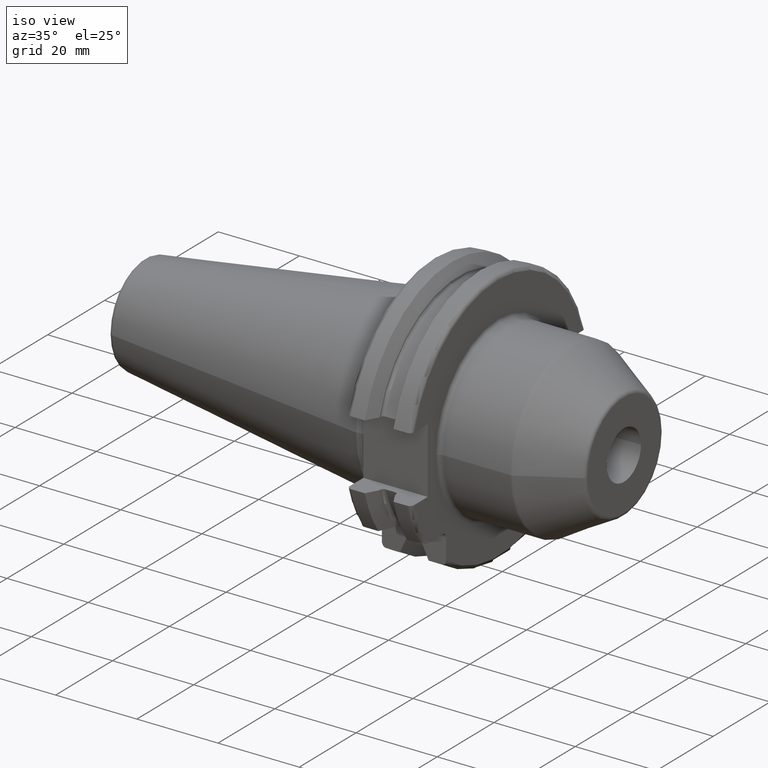
[diagram: clean part render]
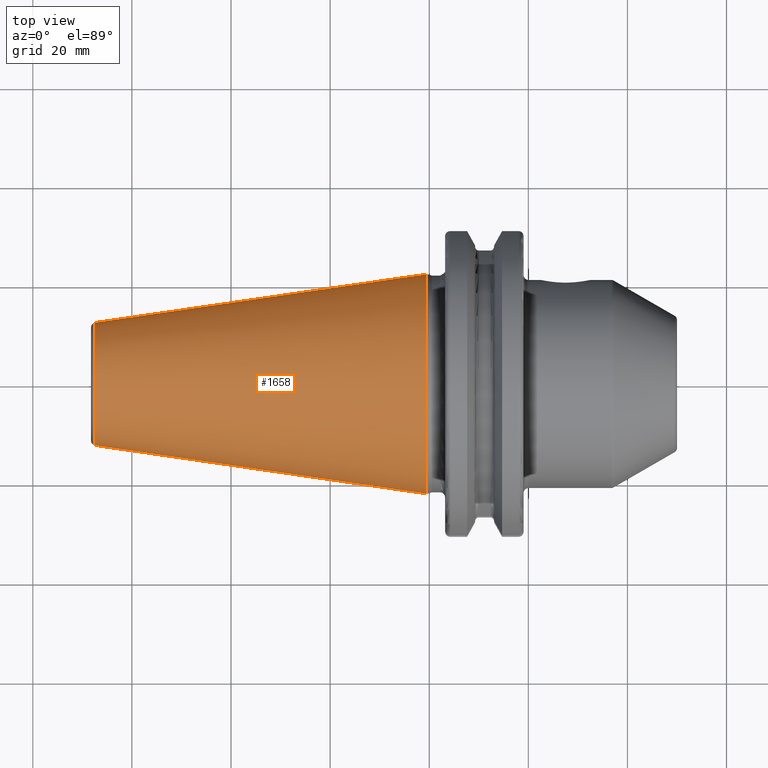
[diagram: tour spotlight — one face highlighted and labeled with its STEP entity id]
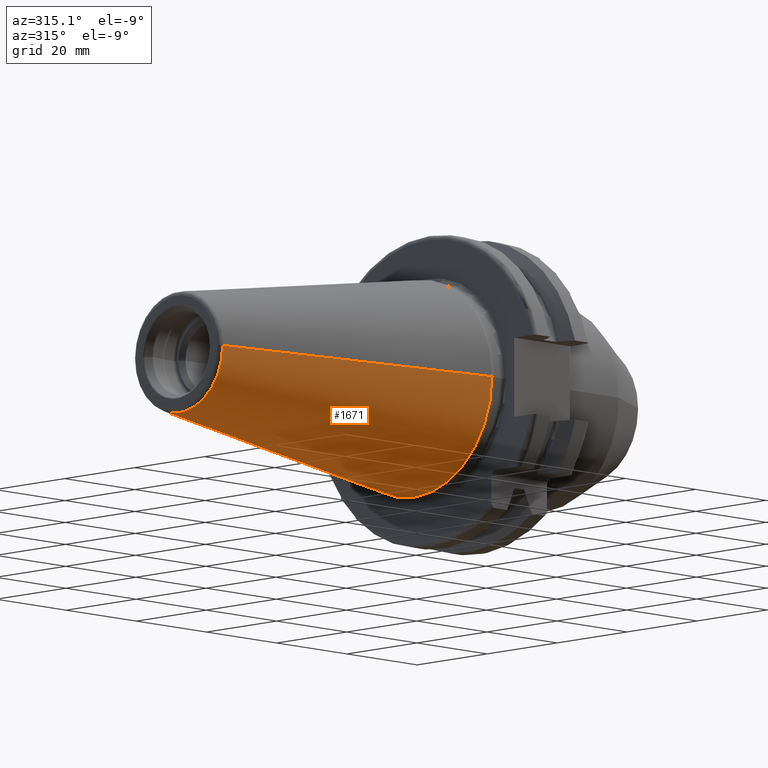
[diagram: tour spotlight — one face highlighted and labeled with its STEP entity id]
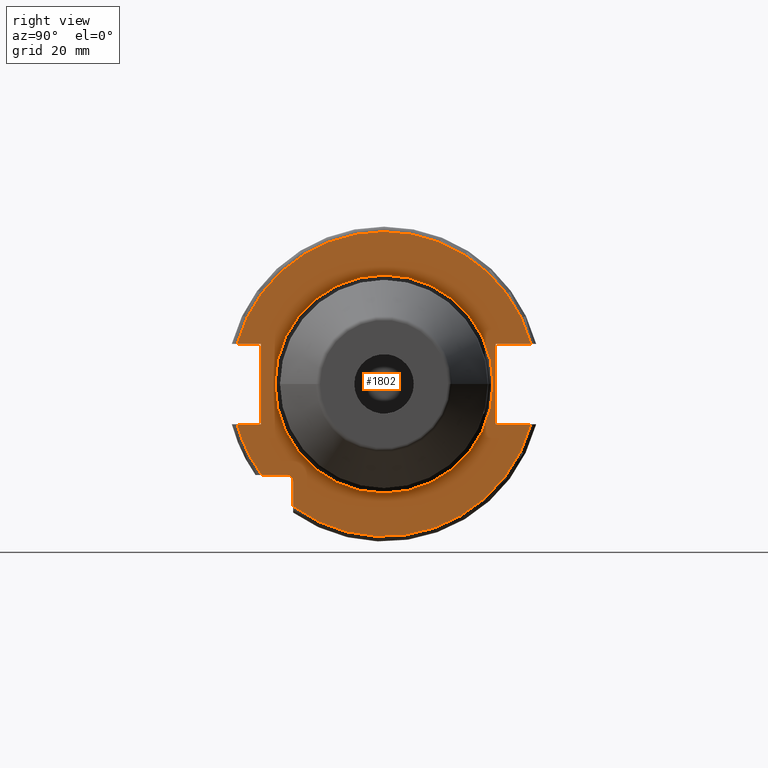
[diagram: tour spotlight — one face highlighted and labeled with its STEP entity id]
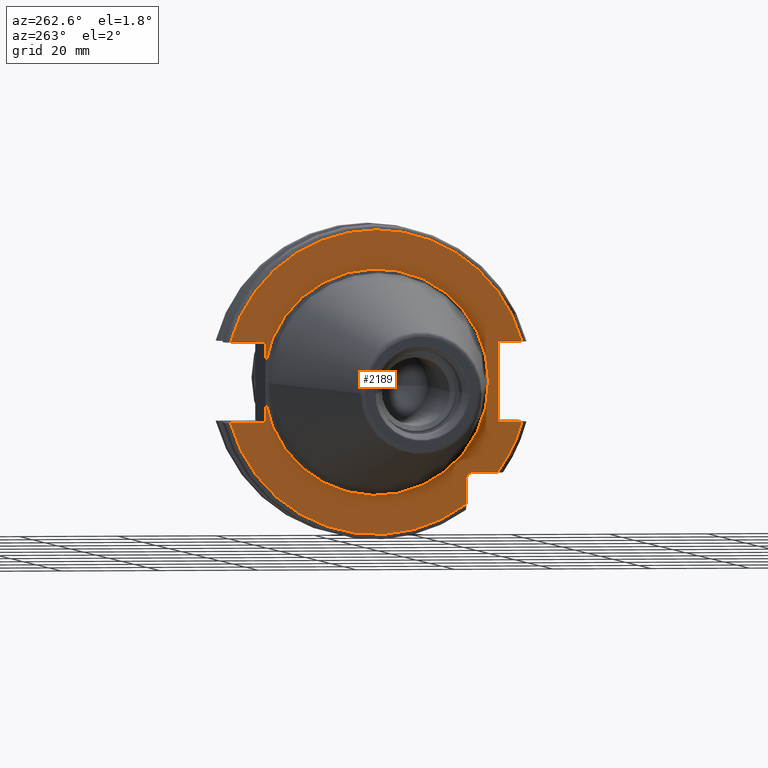
[diagram: tour spotlight — one face highlighted and labeled with its STEP entity id]
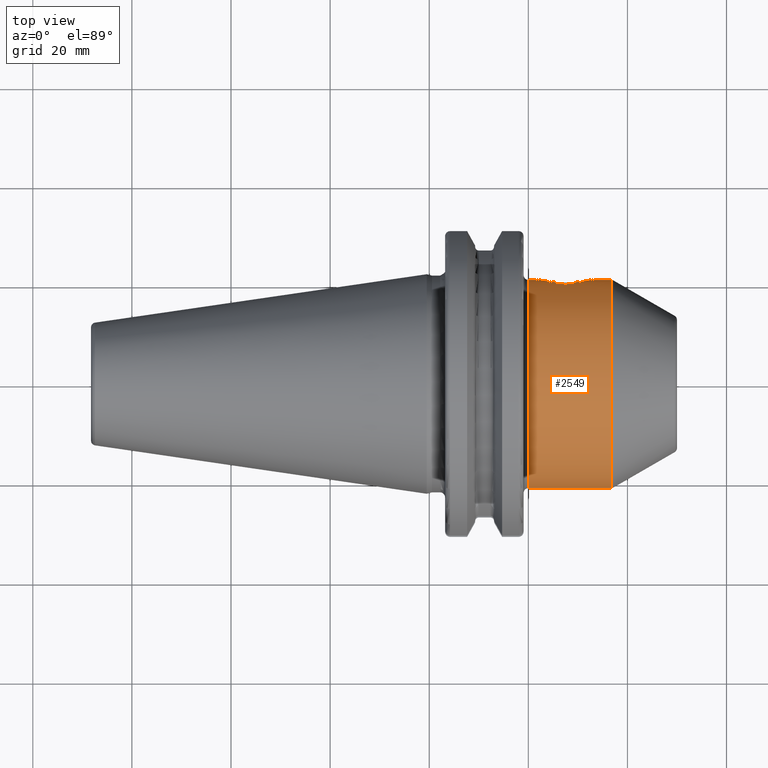
[diagram: tour spotlight — one face highlighted and labeled with its STEP entity id]
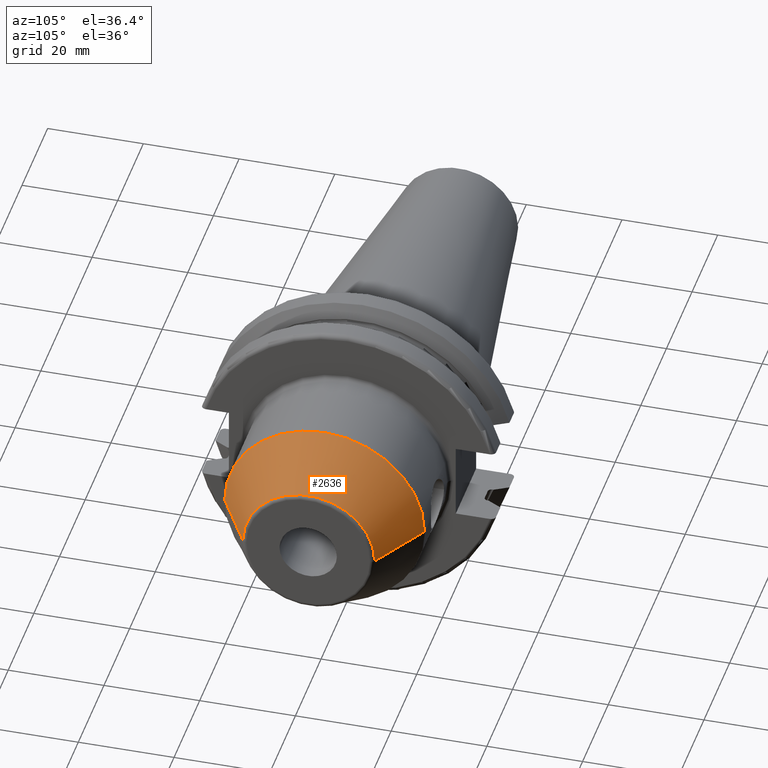
[diagram: tour spotlight — one face highlighted and labeled with its STEP entity id]
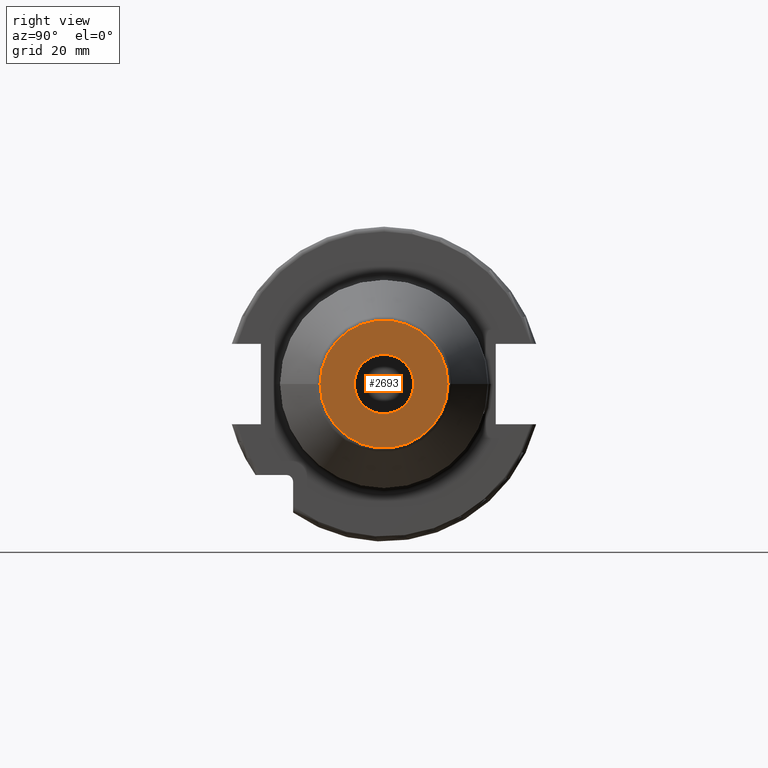
[diagram: tour spotlight — one face highlighted and labeled with its STEP entity id]
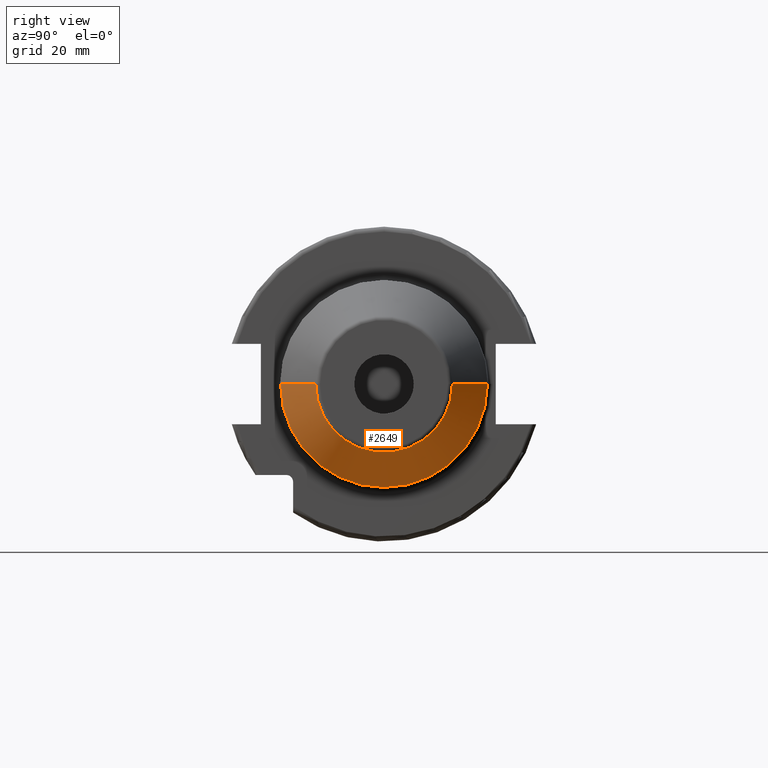
[diagram: tour spotlight — one face highlighted and labeled with its STEP entity id]
A machine part: a face-by-face anatomy tour. The part has 99 B-rep faces; the first image is the clean iso view, then the 8 largest visible faces are spotlighted one at a time (largest first), each with its STEP entity span.

Face 1 — top view, entity #1658. In plain terms, the highlighted conical surface has half-angle 8.298 deg.
Definition (entity closure, byte-faithful):
#37=CARTESIAN_POINT('',(-6.743710273571E1,0.E0,0.E0));
#38=DIRECTION('',(1.E0,0.E0,0.E0));
#39=DIRECTION('',(0.E0,1.E0,0.E0));
#40=AXIS2_PLACEMENT_3D('',#37,#38,#39);
#42=CARTESIAN_POINT('',(-4.896823332305E-1,0.E0,0.E0));
#43=DIRECTION('',(1.E0,0.E0,0.E0));
#44=DIRECTION('',(0.E0,1.E0,0.E0));
#45=AXIS2_PLACEMENT_3D('',#42,#43,#44);
#47=DIRECTION('',(-9.895312636440E-1,-1.443186691705E-1,0.E0));
#48=VECTOR('',#47,6.765568998391E1);
#49=CARTESIAN_POINT('',(-4.896823332305E-1,2.215358204157E1,0.E0));
#50=LINE('',#49,#48);
#51=DIRECTION('',(-9.895312636440E-1,1.443186691705E-1,0.E0));
#52=VECTOR('',#51,6.765568998391E1);
#53=CARTESIAN_POINT('',(-4.896823332305E-1,-2.215358204157E1,0.E0));
#54=LINE('',#53,#52);
#1334=CARTESIAN_POINT('',(-6.743710273571E1,1.238960290128E1,0.E0));
#1336=VERTEX_POINT('',#1334);
#1338=CARTESIAN_POINT('',(-6.743710273571E1,-1.238960290128E1,0.E0));
#1340=VERTEX_POINT('',#1338);
#1402=CARTESIAN_POINT('',(-4.896823332305E-1,2.215358204157E1,0.E0));
#1403=VERTEX_POINT('',#1402);
#1404=CARTESIAN_POINT('',(-4.896823332305E-1,-2.215358204157E1,0.E0));
#1405=VERTEX_POINT('',#1404);
#1644=CARTESIAN_POINT('',(-3.396339253447E1,0.E0,0.E0));
#1645=DIRECTION('',(1.E0,0.E0,0.E0));
#1646=DIRECTION('',(0.E0,-1.E0,0.E0));
#1647=AXIS2_PLACEMENT_3D('',#1644,#1645,#1646);
#1648=CONICAL_SURFACE('',#1647,1.727159247143E1,8.297826828206E0);
#1650=ORIENTED_EDGE('',*,*,#1649,.F.);
#1652=ORIENTED_EDGE('',*,*,#1651,.T.);
#1654=ORIENTED_EDGE('',*,*,#1653,.T.);
#1655=ORIENTED_EDGE('',*,*,#1637,.F.);
#1656=EDGE_LOOP('',(#1650,#1652,#1654,#1655));
#1657=FACE_OUTER_BOUND('',#1656,.F.);
#1658=ADVANCED_FACE('',(#1657),#1648,.T.);
#41=CIRCLE('',#40,1.238960290128E1);
#46=CIRCLE('',#45,2.215358204157E1);
#1637=EDGE_CURVE('',#1336,#1340,#41,.T.);
#1649=EDGE_CURVE('',#1403,#1336,#50,.T.);
#1651=EDGE_CURVE('',#1403,#1405,#46,.T.);
#1653=EDGE_CURVE('',#1405,#1340,#54,.T.);

Face 2 — auxiliary view, entity #1671. In plain terms, the highlighted conical surface has half-angle 8.298 deg.
Definition (entity closure, byte-faithful):
#32=CARTESIAN_POINT('',(-6.743710273571E1,0.E0,0.E0));
#33=DIRECTION('',(-1.E0,0.E0,0.E0));
#34=DIRECTION('',(0.E0,1.E0,0.E0));
#35=AXIS2_PLACEMENT_3D('',#32,#33,#34);
#47=DIRECTION('',(-9.895312636440E-1,-1.443186691705E-1,0.E0));
#48=VECTOR('',#47,6.765568998391E1);
#49=CARTESIAN_POINT('',(-4.896823332305E-1,2.215358204157E1,0.E0));
#50=LINE('',#49,#48);
#51=DIRECTION('',(-9.895312636440E-1,1.443186691705E-1,0.E0));
#52=VECTOR('',#51,6.765568998391E1);
#53=CARTESIAN_POINT('',(-4.896823332305E-1,-2.215358204157E1,0.E0));
#54=LINE('',#53,#52);
#55=CARTESIAN_POINT('',(-4.896823332305E-1,0.E0,0.E0));
#56=DIRECTION('',(-1.E0,0.E0,0.E0));
#57=DIRECTION('',(0.E0,1.E0,0.E0));
#58=AXIS2_PLACEMENT_3D('',#55,#56,#57);
#1334=CARTESIAN_POINT('',(-6.743710273571E1,1.238960290128E1,0.E0));
#1336=VERTEX_POINT('',#1334);
#1338=CARTESIAN_POINT('',(-6.743710273571E1,-1.238960290128E1,0.E0));
#1340=VERTEX_POINT('',#1338);
#1402=CARTESIAN_POINT('',(-4.896823332305E-1,2.215358204157E1,0.E0));
#1403=VERTEX_POINT('',#1402);
#1404=CARTESIAN_POINT('',(-4.896823332305E-1,-2.215358204157E1,0.E0));
#1405=VERTEX_POINT('',#1404);
#1659=CARTESIAN_POINT('',(-3.396339253447E1,0.E0,0.E0));
#1660=DIRECTION('',(1.E0,0.E0,0.E0));
#1661=DIRECTION('',(0.E0,-1.E0,0.E0));
#1662=AXIS2_PLACEMENT_3D('',#1659,#1660,#1661);
#1663=CONICAL_SURFACE('',#1662,1.727159247143E1,8.297826828206E0);
#1664=ORIENTED_EDGE('',*,*,#1649,.T.);
#1665=ORIENTED_EDGE('',*,*,#1626,.T.);
#1666=ORIENTED_EDGE('',*,*,#1653,.F.);
#1668=ORIENTED_EDGE('',*,*,#1667,.F.);
#1669=EDGE_LOOP('',(#1664,#1665,#1666,#1668));
#1670=FACE_OUTER_BOUND('',#1669,.F.);
#1671=ADVANCED_FACE('',(#1670),#1663,.T.);
#36=CIRCLE('',#35,1.238960290128E1);
#59=CIRCLE('',#58,2.215358204157E1);
#1626=EDGE_CURVE('',#1336,#1340,#36,.T.);
#1649=EDGE_CURVE('',#1403,#1336,#50,.T.);
#1653=EDGE_CURVE('',#1405,#1340,#54,.T.);
#1667=EDGE_CURVE('',#1403,#1405,#59,.T.);

Face 3 — right view, entity #1802. In plain terms, the highlighted planar face has unit normal (1, 0, 0).
Definition (entity closure, byte-faithful):
#126=DIRECTION('',(0.E0,0.E0,1.E0));
#127=VECTOR('',#126,4.990259339464E0);
#128=CARTESIAN_POINT('',(1.905E1,-1.835E1,-2.469025933946E1));
#129=LINE('',#128,#127);
#130=DIRECTION('',(0.E0,-1.E0,0.E0));
#131=VECTOR('',#130,4.990259339464E0);
#132=CARTESIAN_POINT('',(1.905E1,-1.97E1,-1.835E1));
#133=LINE('',#132,#131);
#134=DIRECTION('',(0.E0,1.E0,0.E0));
#135=VECTOR('',#134,4.826950757280E0);
#136=CARTESIAN_POINT('',(1.905E1,-2.967695075728E1,-8.1E0));
#137=LINE('',#136,#135);
#138=DIRECTION('',(0.E0,0.E0,1.E0));
#139=VECTOR('',#138,1.62E1);
#140=CARTESIAN_POINT('',(1.905E1,-2.485E1,-8.1E0));
#141=LINE('',#140,#139);
#142=DIRECTION('',(0.E0,1.E0,0.E0));
#143=VECTOR('',#142,4.826950757280E0);
#144=CARTESIAN_POINT('',(1.905E1,-2.967695075728E1,8.1E0));
#145=LINE('',#144,#143);
#146=DIRECTION('',(0.E0,-1.E0,0.E0));
#147=VECTOR('',#146,7.126950757280E0);
#148=CARTESIAN_POINT('',(1.905E1,2.967695075728E1,8.1E0));
#149=LINE('',#148,#147);
#150=DIRECTION('',(0.E0,0.E0,-1.E0));
#151=VECTOR('',#150,1.62E1);
#152=CARTESIAN_POINT('',(1.905E1,2.255E1,8.1E0));
#153=LINE('',#152,#151);
#154=DIRECTION('',(0.E0,-1.E0,0.E0));
#155=VECTOR('',#154,7.126950757280E0);
#156=CARTESIAN_POINT('',(1.905E1,2.967695075728E1,-8.1E0));
#157=LINE('',#156,#155);
#158=CARTESIAN_POINT('',(1.905E1,0.E0,0.E0));
#159=DIRECTION('',(1.E0,0.E0,0.E0));
#160=DIRECTION('',(0.E0,-1.E0,0.E0));
#161=AXIS2_PLACEMENT_3D('',#158,#159,#160);
#163=CARTESIAN_POINT('',(1.905E1,0.E0,0.E0));
#164=DIRECTION('',(1.E0,0.E0,0.E0));
#165=DIRECTION('',(0.E0,1.E0,0.E0));
#166=AXIS2_PLACEMENT_3D('',#163,#164,#165);
#194=CARTESIAN_POINT('',(1.905E1,0.E0,0.E0));
#195=DIRECTION('',(-1.E0,0.E0,0.E0));
#196=DIRECTION('',(0.E0,9.647119303464E-1,-2.633075985372E-1));
#197=AXIS2_PLACEMENT_3D('',#194,#195,#196);
#210=CARTESIAN_POINT('',(1.905E1,0.E0,0.E0));
#211=DIRECTION('',(-1.E0,0.E0,0.E0));
#212=DIRECTION('',(0.E0,-8.026089992512E-1,-5.965054855750E-1));
#213=AXIS2_PLACEMENT_3D('',#210,#211,#212);
#525=CARTESIAN_POINT('',(1.905E1,-1.97E1,-1.97E1));
#526=DIRECTION('',(-1.E0,0.E0,0.E0));
#527=DIRECTION('',(0.E0,0.E0,1.E0));
#528=AXIS2_PLACEMENT_3D('',#525,#526,#527);
#882=CARTESIAN_POINT('',(1.905E1,0.E0,0.E0));
#883=DIRECTION('',(1.E0,0.E0,0.E0));
#884=DIRECTION('',(0.E0,9.647119303464E-1,2.633075985372E-1));
#885=AXIS2_PLACEMENT_3D('',#882,#883,#884);
#1472=CARTESIAN_POINT('',(1.905E1,2.967695075728E1,8.1E0));
#1473=CARTESIAN_POINT('',(1.905E1,2.255E1,8.1E0));
#1474=VERTEX_POINT('',#1472);
#1475=VERTEX_POINT('',#1473);
#1476=CARTESIAN_POINT('',(1.905E1,2.255E1,-8.1E0));
#1477=VERTEX_POINT('',#1476);
#1478=CARTESIAN_POINT('',(1.905E1,2.967695075728E1,-8.1E0));
#1479=VERTEX_POINT('',#1478);
#1480=CARTESIAN_POINT('',(1.905E1,-2.967695075728E1,-8.1E0));
#1481=CARTESIAN_POINT('',(1.905E1,-2.485E1,-8.1E0));
#1482=VERTEX_POINT('',#1480);
#1483=VERTEX_POINT('',#1481);
#1484=CARTESIAN_POINT('',(1.905E1,-2.485E1,8.1E0));
#1485=VERTEX_POINT('',#1484);
#1486=CARTESIAN_POINT('',(1.905E1,-2.967695075728E1,8.1E0));
#1487=VERTEX_POINT('',#1486);
#1533=CARTESIAN_POINT('',(1.905E1,-1.835E1,-2.469025933946E1));
#1534=VERTEX_POINT('',#1533);
#1541=CARTESIAN_POINT('',(1.905E1,-1.97E1,-1.835E1));
#1542=CARTESIAN_POINT('',(1.905E1,-2.469025933946E1,-1.835E1));
#1543=VERTEX_POINT('',#1541);
#1544=VERTEX_POINT('',#1542);
#1545=CARTESIAN_POINT('',(1.905E1,-1.835E1,-1.97E1));
#1546=VERTEX_POINT('',#1545);
#1561=CARTESIAN_POINT('',(1.905E1,-2.2E1,0.E0));
#1562=CARTESIAN_POINT('',(1.905E1,2.2E1,0.E0));
#1563=VERTEX_POINT('',#1561);
#1564=VERTEX_POINT('',#1562);
#1766=CARTESIAN_POINT('',(1.905E1,0.E0,0.E0));
#1767=DIRECTION('',(1.E0,0.E0,0.E0));
#1768=DIRECTION('',(0.E0,-1.E0,0.E0));
#1769=AXIS2_PLACEMENT_3D('',#1766,#1767,#1768);
#1770=PLANE('',#1769);
#1772=ORIENTED_EDGE('',*,*,#1771,.T.);
#1774=ORIENTED_EDGE('',*,*,#1773,.F.);
#1776=ORIENTED_EDGE('',*,*,#1775,.T.);
#1778=ORIENTED_EDGE('',*,*,#1777,.T.);
#1780=ORIENTED_EDGE('',*,*,#1779,.T.);
#1782=ORIENTED_EDGE('',*,*,#1781,.T.);
#1784=ORIENTED_EDGE('',*,*,#1783,.F.);
#1786=ORIENTED_EDGE('',*,*,#1785,.F.);
#1788=ORIENTED_EDGE('',*,*,#1787,.T.);
#1789=ORIENTED_EDGE('',*,*,#1750,.T.);
#1791=ORIENTED_EDGE('',*,*,#1790,.F.);
#1793=ORIENTED_EDGE('',*,*,#1792,.T.);
#1794=EDGE_LOOP('',(#1772,#1774,#1776,#1778,#1780,#1782,#1784,#1786,#1788,#1789,
#1791,#1793));
#1795=FACE_OUTER_BOUND('',#1794,.F.);
#1797=ORIENTED_EDGE('',*,*,#1796,.T.);
#1799=ORIENTED_EDGE('',*,*,#1798,.T.);
#1800=EDGE_LOOP('',(#1797,#1799));
#1801=FACE_BOUND('',#1800,.F.);
#1802=ADVANCED_FACE('',(#1795,#1801),#1770,.T.);
#162=CIRCLE('',#161,2.2E1);
#167=CIRCLE('',#166,2.2E1);
#198=CIRCLE('',#197,3.07625E1);
#214=CIRCLE('',#213,3.07625E1);
#529=CIRCLE('',#528,1.35E0);
#886=CIRCLE('',#885,3.07625E1);
#1750=EDGE_CURVE('',#1475,#1477,#153,.T.);
#1771=EDGE_CURVE('',#1534,#1546,#129,.T.);
#1773=EDGE_CURVE('',#1543,#1546,#529,.T.);
#1775=EDGE_CURVE('',#1543,#1544,#133,.T.);
#1777=EDGE_CURVE('',#1544,#1482,#214,.T.);
#1779=EDGE_CURVE('',#1482,#1483,#137,.T.);
#1781=EDGE_CURVE('',#1483,#1485,#141,.T.);
#1783=EDGE_CURVE('',#1487,#1485,#145,.T.);
#1785=EDGE_CURVE('',#1474,#1487,#886,.T.);
#1787=EDGE_CURVE('',#1474,#1475,#149,.T.);
#1790=EDGE_CURVE('',#1479,#1477,#157,.T.);
#1792=EDGE_CURVE('',#1479,#1534,#198,.T.);
#1796=EDGE_CURVE('',#1563,#1564,#162,.T.);
#1798=EDGE_CURVE('',#1564,#1563,#167,.T.);

Face 4 — auxiliary view, entity #2189. In plain terms, the highlighted planar face has unit normal (1, 0, 0).
Definition (entity closure, byte-faithful):
#117=CARTESIAN_POINT('',(3.2E0,0.E0,0.E0));
#118=DIRECTION('',(-1.E0,0.E0,0.E0));
#119=DIRECTION('',(0.E0,9.857923497268E-1,-1.679685780739E-1));
#120=AXIS2_PLACEMENT_3D('',#117,#118,#119);
#470=DIRECTION('',(0.E0,-1.E0,0.E0));
#471=VECTOR('',#470,4.990259339464E0);
#472=CARTESIAN_POINT('',(3.2E0,-1.97E1,-1.835E1));
#473=LINE('',#472,#471);
#474=DIRECTION('',(0.E0,0.E0,1.E0));
#475=VECTOR('',#474,4.990259339464E0);
#476=CARTESIAN_POINT('',(3.2E0,-1.835E1,-2.469025933946E1));
#477=LINE('',#476,#475);
#478=CARTESIAN_POINT('',(3.2E0,0.E0,0.E0));
#479=DIRECTION('',(-1.E0,0.E0,0.E0));
#480=DIRECTION('',(0.E0,9.647119303464E-1,-2.633075985372E-1));
#481=AXIS2_PLACEMENT_3D('',#478,#479,#480);
#483=DIRECTION('',(0.E0,-1.E0,0.E0));
#484=VECTOR('',#483,7.126950757280E0);
#485=CARTESIAN_POINT('',(3.2E0,2.967695075728E1,-8.1E0));
#486=LINE('',#485,#484);
#487=DIRECTION('',(0.E0,0.E0,-1.E0));
#488=VECTOR('',#487,4.257718776560E0);
#489=CARTESIAN_POINT('',(3.2E0,2.255E1,-3.842281223440E0));
#490=LINE('',#489,#488);
#491=DIRECTION('',(0.E0,0.E0,-1.E0));
#492=VECTOR('',#491,4.257718776560E0);
#493=CARTESIAN_POINT('',(3.2E0,2.255E1,8.1E0));
#494=LINE('',#493,#492);
#495=DIRECTION('',(0.E0,-1.E0,0.E0));
#496=VECTOR('',#495,7.126950757280E0);
#497=CARTESIAN_POINT('',(3.2E0,2.967695075728E1,8.1E0));
#498=LINE('',#497,#496);
#499=CARTESIAN_POINT('',(3.2E0,0.E0,0.E0));
#500=DIRECTION('',(1.E0,0.E0,0.E0));
#501=DIRECTION('',(0.E0,9.647119303464E-1,2.633075985372E-1));
#502=AXIS2_PLACEMENT_3D('',#499,#500,#501);
#504=DIRECTION('',(0.E0,1.E0,0.E0));
#505=VECTOR('',#504,4.826950757280E0);
#506=CARTESIAN_POINT('',(3.2E0,-2.967695075728E1,8.1E0));
#507=LINE('',#506,#505);
#508=DIRECTION('',(0.E0,0.E0,1.E0));
#509=VECTOR('',#508,1.62E1);
#510=CARTESIAN_POINT('',(3.2E0,-2.485E1,-8.1E0));
#511=LINE('',#510,#509);
#512=DIRECTION('',(0.E0,1.E0,0.E0));
#513=VECTOR('',#512,4.826950757280E0);
#514=CARTESIAN_POINT('',(3.2E0,-2.967695075728E1,-8.1E0));
#515=LINE('',#514,#513);
#516=CARTESIAN_POINT('',(3.2E0,0.E0,0.E0));
#517=DIRECTION('',(-1.E0,0.E0,0.E0));
#518=DIRECTION('',(0.E0,-8.026089992512E-1,-5.965054855750E-1));
#519=AXIS2_PLACEMENT_3D('',#516,#517,#518);
#530=CARTESIAN_POINT('',(3.2E0,-1.97E1,-1.97E1));
#531=DIRECTION('',(1.E0,0.E0,0.E0));
#532=DIRECTION('',(0.E0,1.E0,0.E0));
#533=AXIS2_PLACEMENT_3D('',#530,#531,#532);
#866=CARTESIAN_POINT('',(3.2E0,0.E0,0.E0));
#867=DIRECTION('',(1.E0,0.E0,0.E0));
#868=DIRECTION('',(0.E0,9.857923497268E-1,1.679685780739E-1));
#869=AXIS2_PLACEMENT_3D('',#866,#867,#868);
#1346=CARTESIAN_POINT('',(3.2E0,-2.2875E1,0.E0));
#1348=VERTEX_POINT('',#1346);
#1496=CARTESIAN_POINT('',(3.2E0,2.967695075728E1,8.1E0));
#1497=CARTESIAN_POINT('',(3.2E0,2.255E1,8.1E0));
#1498=VERTEX_POINT('',#1496);
#1499=VERTEX_POINT('',#1497);
#1500=CARTESIAN_POINT('',(3.2E0,2.255E1,3.842281223440E0));
#1501=VERTEX_POINT('',#1500);
#1502=CARTESIAN_POINT('',(3.2E0,2.255E1,-3.842281223440E0));
#1503=CARTESIAN_POINT('',(3.2E0,2.255E1,-8.1E0));
#1504=VERTEX_POINT('',#1502);
#1505=VERTEX_POINT('',#1503);
#1506=CARTESIAN_POINT('',(3.2E0,2.967695075728E1,-8.1E0));
#1507=VERTEX_POINT('',#1506);
#1508=CARTESIAN_POINT('',(3.2E0,-2.967695075728E1,-8.1E0));
#1509=CARTESIAN_POINT('',(3.2E0,-2.485E1,-8.1E0));
#1510=VERTEX_POINT('',#1508);
#1511=VERTEX_POINT('',#1509);
#1512=CARTESIAN_POINT('',(3.2E0,-2.485E1,8.1E0));
#1513=VERTEX_POINT('',#1512);
#1514=CARTESIAN_POINT('',(3.2E0,-2.967695075728E1,8.1E0));
#1515=VERTEX_POINT('',#1514);
#1539=CARTESIAN_POINT('',(3.2E0,-1.835E1,-2.469025933946E1));
#1540=VERTEX_POINT('',#1539);
#1547=CARTESIAN_POINT('',(3.2E0,-1.97E1,-1.835E1));
#1548=CARTESIAN_POINT('',(3.2E0,-2.469025933946E1,-1.835E1));
#1549=VERTEX_POINT('',#1547);
#1550=VERTEX_POINT('',#1548);
#1551=CARTESIAN_POINT('',(3.2E0,-1.835E1,-1.97E1));
#1552=VERTEX_POINT('',#1551);
#2160=CARTESIAN_POINT('',(3.2E0,0.E0,0.E0));
#2161=DIRECTION('',(1.E0,0.E0,0.E0));
#2162=DIRECTION('',(0.E0,-1.E0,0.E0));
#2163=AXIS2_PLACEMENT_3D('',#2160,#2161,#2162);
#2164=PLANE('',#2163);
#2166=ORIENTED_EDGE('',*,*,#2165,.F.);
#2168=ORIENTED_EDGE('',*,*,#2167,.F.);
#2169=ORIENTED_EDGE('',*,*,#1831,.F.);
#2171=ORIENTED_EDGE('',*,*,#2170,.F.);
#2172=ORIENTED_EDGE('',*,*,#1889,.T.);
#2173=ORIENTED_EDGE('',*,*,#1759,.F.);
#2174=ORIENTED_EDGE('',*,*,#1740,.T.);
#2176=ORIENTED_EDGE('',*,*,#2175,.F.);
#2177=ORIENTED_EDGE('',*,*,#1754,.F.);
#2178=ORIENTED_EDGE('',*,*,#1958,.F.);
#2179=ORIENTED_EDGE('',*,*,#2155,.T.);
#2180=ORIENTED_EDGE('',*,*,#2016,.T.);
#2182=ORIENTED_EDGE('',*,*,#2181,.F.);
#2184=ORIENTED_EDGE('',*,*,#2183,.F.);
#2186=ORIENTED_EDGE('',*,*,#2185,.F.);
#2187=EDGE_LOOP('',(#2166,#2168,#2169,#2171,#2172,#2173,#2174,#2176,#2177,#2178,
#2179,#2180,#2182,#2184,#2186));
#2188=FACE_OUTER_BOUND('',#2187,.F.);
#2189=ADVANCED_FACE('',(#2188),#2164,.F.);
#121=CIRCLE('',#120,2.2875E1);
#482=CIRCLE('',#481,3.07625E1);
#503=CIRCLE('',#502,3.07625E1);
#520=CIRCLE('',#519,3.07625E1);
#534=CIRCLE('',#533,1.35E0);
#870=CIRCLE('',#869,2.2875E1);
#1740=EDGE_CURVE('',#1504,#1348,#121,.T.);
#1754=EDGE_CURVE('',#1499,#1501,#494,.T.);
#1759=EDGE_CURVE('',#1504,#1505,#490,.T.);
#1831=EDGE_CURVE('',#1540,#1552,#477,.T.);
#1889=EDGE_CURVE('',#1507,#1505,#486,.T.);
#1958=EDGE_CURVE('',#1498,#1499,#498,.T.);
#2016=EDGE_CURVE('',#1515,#1513,#507,.T.);
#2155=EDGE_CURVE('',#1498,#1515,#503,.T.);
#2165=EDGE_CURVE('',#1549,#1550,#473,.T.);
#2167=EDGE_CURVE('',#1552,#1549,#534,.T.);
#2170=EDGE_CURVE('',#1507,#1540,#482,.T.);
#2175=EDGE_CURVE('',#1501,#1348,#870,.T.);
#2181=EDGE_CURVE('',#1511,#1513,#511,.T.);
#2183=EDGE_CURVE('',#1510,#1511,#515,.T.);
#2185=EDGE_CURVE('',#1550,#1510,#520,.T.);

Face 5 — top view, entity #2549. In plain terms, the highlighted cylindrical surface (partial cylindrical patch) has radius 21 mm, axis along (1, 0, 0).
Definition (entity closure, byte-faithful):
#908=CARTESIAN_POINT('',(3.26E1,2.1E1,0.E0));
#909=CARTESIAN_POINT('',(3.26E1,2.1E1,3.161891526630E-1));
#910=CARTESIAN_POINT('',(3.254248900596E1,2.098591399606E1,9.370065775896E-1));
#911=CARTESIAN_POINT('',(3.228391612519E1,2.092465398686E1,1.849363236920E0));
#912=CARTESIAN_POINT('',(3.186742153787E1,2.083236077096E1,2.688704511159E0));
#913=CARTESIAN_POINT('',(3.130141455598E1,2.071991583657E1,3.442503667406E0));
#914=CARTESIAN_POINT('',(3.061534477317E1,2.060372149802E1,4.074069040042E0));
#915=CARTESIAN_POINT('',(2.981366233392E1,2.049660484811E1,4.577372892936E0));
#916=CARTESIAN_POINT('',(2.893851308238E1,2.041520399688E1,4.923675226914E0));
#917=CARTESIAN_POINT('',(2.799379995138E1,2.036988033640E1,5.105816993345E0));
#918=CARTESIAN_POINT('',(2.704690634566E1,2.036894573870E1,5.109496738638E0));
#919=CARTESIAN_POINT('',(2.610263058522E1,2.041232766337E1,4.935429109221E0));
#920=CARTESIAN_POINT('',(2.522337193309E1,2.049235163150E1,4.596213225941E0));
#921=CARTESIAN_POINT('',(2.441203114842E1,2.059947738759E1,4.095436089256E0));
#922=CARTESIAN_POINT('',(2.371677702077E1,2.071650105612E1,3.463162052591E0));
#923=CARTESIAN_POINT('',(2.314276934239E1,2.083017483835E1,2.705965849309E0));
#924=CARTESIAN_POINT('',(2.272081135796E1,2.092355125347E1,1.862604385451E0));
#925=CARTESIAN_POINT('',(2.245840123858E1,2.098569356872E1,9.441332576554E-1));
#926=CARTESIAN_POINT('',(2.24E1,2.1E1,3.186976489893E-1));
#927=CARTESIAN_POINT('',(2.24E1,2.1E1,0.E0));
#929=CARTESIAN_POINT('',(3.673205080757E1,0.E0,0.E0));
#930=DIRECTION('',(-1.E0,0.E0,0.E0));
#931=DIRECTION('',(0.E0,-1.E0,0.E0));
#932=AXIS2_PLACEMENT_3D('',#929,#930,#931);
#934=CARTESIAN_POINT('',(2.005E1,0.E0,0.E0));
#935=DIRECTION('',(1.E0,0.E0,0.E0));
#936=DIRECTION('',(0.E0,1.E0,0.E0));
#937=AXIS2_PLACEMENT_3D('',#934,#935,#936);
#968=DIRECTION('',(-1.E0,0.E0,1.085248912013E-12));
#969=VECTOR('',#968,2.35E0);
#970=CARTESIAN_POINT('',(2.24E1,2.1E1,0.E0));
#971=LINE('',#970,#969);
#977=DIRECTION('',(-1.E0,0.E0,-3.385644432892E-13));
#978=VECTOR('',#977,1.668205080757E1);
#979=CARTESIAN_POINT('',(3.673205080757E1,-2.1E1,3.093381769872E-12));
#980=LINE('',#979,#978);
#986=DIRECTION('',(-1.E0,0.E0,7.490991313013E-13));
#987=VECTOR('',#986,4.132050807569E0);
#988=CARTESIAN_POINT('',(3.673205080757E1,2.1E1,-3.094029791304E-12));
#989=LINE('',#988,#987);
#1565=CARTESIAN_POINT('',(2.005E1,-2.1E1,0.E0));
#1566=CARTESIAN_POINT('',(2.005E1,2.1E1,0.E0));
#1567=VERTEX_POINT('',#1565);
#1568=VERTEX_POINT('',#1566);
#1569=CARTESIAN_POINT('',(3.673205080757E1,2.1E1,0.E0));
#1570=CARTESIAN_POINT('',(3.673205080757E1,-2.1E1,0.E0));
#1571=VERTEX_POINT('',#1569);
#1572=VERTEX_POINT('',#1570);
#1594=VERTEX_POINT('',#908);
#1595=VERTEX_POINT('',#927);
#2531=CARTESIAN_POINT('',(1.75025E1,0.E0,0.E0));
#2532=DIRECTION('',(1.E0,0.E0,0.E0));
#2533=DIRECTION('',(0.E0,-1.E0,0.E0));
#2534=AXIS2_PLACEMENT_3D('',#2531,#2532,#2533);
#2535=CYLINDRICAL_SURFACE('',#2534,2.1E1);
#2537=ORIENTED_EDGE('',*,*,#2536,.F.);
#2539=ORIENTED_EDGE('',*,*,#2538,.F.);
#2541=ORIENTED_EDGE('',*,*,#2540,.F.);
#2543=ORIENTED_EDGE('',*,*,#2542,.T.);
#2544=ORIENTED_EDGE('',*,*,#2525,.F.);
#2546=ORIENTED_EDGE('',*,*,#2545,.F.);
#2547=EDGE_LOOP('',(#2537,#2539,#2541,#2543,#2544,#2546));
#2548=FACE_OUTER_BOUND('',#2547,.F.);
#2549=ADVANCED_FACE('',(#2548),#2535,.T.);
#928=B_SPLINE_CURVE_WITH_KNOTS('',3,(#908,#909,#910,#911,#912,#913,#914,#915,
#916,#917,#918,#919,#920,#921,#922,#923,#924,#925,#926,#927),.UNSPECIFIED.,.F.,
.F.,(4,1,1,1,1,1,1,1,1,1,1,1,1,1,1,1,1,4),(0.E0,5.882352941176E-2,
1.176470588235E-1,1.764705882353E-1,2.352941176471E-1,2.941176470588E-1,
3.529411764706E-1,4.117647058824E-1,4.705882352941E-1,5.294117647059E-1,
5.882352941176E-1,6.470588235294E-1,7.058823529412E-1,7.647058823529E-1,
8.235294117647E-1,8.823529411765E-1,9.411764705882E-1,1.E0),.UNSPECIFIED.);
#933=CIRCLE('',#932,2.1E1);
#938=CIRCLE('',#937,2.1E1);
#2525=EDGE_CURVE('',#1568,#1567,#938,.T.);
#2536=EDGE_CURVE('',#1594,#1595,#928,.T.);
#2538=EDGE_CURVE('',#1571,#1594,#989,.T.);
#2540=EDGE_CURVE('',#1572,#1571,#933,.T.);
#2542=EDGE_CURVE('',#1572,#1567,#980,.T.);
#2545=EDGE_CURVE('',#1595,#1568,#971,.T.);

Face 6 — auxiliary view, entity #2636. In plain terms, the highlighted conical surface has half-angle 30 deg.
Definition (entity closure, byte-faithful):
#1000=CARTESIAN_POINT('',(3.723205080757E1,0.E0,0.E0));
#1001=DIRECTION('',(-1.E0,0.E0,0.E0));
#1002=DIRECTION('',(0.E0,-1.E0,0.E0));
#1003=AXIS2_PLACEMENT_3D('',#1000,#1001,#1002);
#1005=CARTESIAN_POINT('',(4.95E1,0.E0,0.E0));
#1006=DIRECTION('',(-1.E0,0.E0,0.E0));
#1007=DIRECTION('',(0.E0,-1.E0,0.E0));
#1008=AXIS2_PLACEMENT_3D('',#1005,#1006,#1007);
#1015=DIRECTION('',(-8.660254037844E-1,-5.E-1,1.189947544583E-13));
#1016=VECTOR('',#1015,1.416580753731E1);
#1017=CARTESIAN_POINT('',(4.95E1,-1.378312163513E1,3.810775032617E-13));
#1018=LINE('',#1017,#1016);
#1024=DIRECTION('',(-8.660254037844E-1,5.E-1,-1.181494242382E-13));
#1025=VECTOR('',#1024,1.416580753731E1);
#1026=CARTESIAN_POINT('',(4.95E1,1.378312163513E1,-3.814994896565E-13));
#1027=LINE('',#1026,#1025);
#1573=CARTESIAN_POINT('',(3.723205080757E1,2.086602540378E1,0.E0));
#1574=CARTESIAN_POINT('',(3.723205080757E1,-2.086602540378E1,0.E0));
#1575=VERTEX_POINT('',#1573);
#1576=VERTEX_POINT('',#1574);
#1577=CARTESIAN_POINT('',(4.95E1,1.378312163513E1,0.E0));
#1578=CARTESIAN_POINT('',(4.95E1,-1.378312163513E1,0.E0));
#1579=VERTEX_POINT('',#1577);
#1580=VERTEX_POINT('',#1578);
#2622=CARTESIAN_POINT('',(4.336602540378E1,0.E0,0.E0));
#2623=DIRECTION('',(-1.E0,0.E0,0.E0));
#2624=DIRECTION('',(0.E0,1.E0,0.E0));
#2625=AXIS2_PLACEMENT_3D('',#2622,#2623,#2624);
#2626=CONICAL_SURFACE('',#2625,1.732457351946E1,3.E1);
#2627=ORIENTED_EDGE('',*,*,#2616,.T.);
#2629=ORIENTED_EDGE('',*,*,#2628,.F.);
#2631=ORIENTED_EDGE('',*,*,#2630,.F.);
#2633=ORIENTED_EDGE('',*,*,#2632,.T.);
#2634=EDGE_LOOP('',(#2627,#2629,#2631,#2633));
#2635=FACE_OUTER_BOUND('',#2634,.F.);
#2636=ADVANCED_FACE('',(#2635),#2626,.T.);
#1004=CIRCLE('',#1003,2.086602540378E1);
#1009=CIRCLE('',#1008,1.378312163513E1);
#2616=EDGE_CURVE('',#1576,#1575,#1004,.T.);
#2628=EDGE_CURVE('',#1579,#1575,#1027,.T.);
#2630=EDGE_CURVE('',#1580,#1579,#1009,.T.);
#2632=EDGE_CURVE('',#1580,#1576,#1018,.T.);

Face 7 — right view, entity #2693. In plain terms, the highlighted planar face has unit normal (1, 0, 0).
Definition (entity closure, byte-faithful):
#1038=CARTESIAN_POINT('',(5.E1,0.E0,0.E0));
#1039=DIRECTION('',(1.E0,0.E0,0.E0));
#1040=DIRECTION('',(0.E0,1.E0,0.E0));
#1041=AXIS2_PLACEMENT_3D('',#1038,#1039,#1040);
#1043=CARTESIAN_POINT('',(5.E1,0.E0,0.E0));
#1044=DIRECTION('',(1.E0,0.E0,0.E0));
#1045=DIRECTION('',(0.E0,-1.E0,0.E0));
#1046=AXIS2_PLACEMENT_3D('',#1043,#1044,#1045);
#1048=CARTESIAN_POINT('',(5.E1,0.E0,0.E0));
#1049=DIRECTION('',(-1.E0,0.E0,0.E0));
#1050=DIRECTION('',(0.E0,1.E0,0.E0));
#1051=AXIS2_PLACEMENT_3D('',#1048,#1049,#1050);
#1053=CARTESIAN_POINT('',(5.E1,0.E0,0.E0));
#1054=DIRECTION('',(-1.E0,0.E0,0.E0));
#1055=DIRECTION('',(0.E0,-1.E0,0.E0));
#1056=AXIS2_PLACEMENT_3D('',#1053,#1054,#1055);
#1557=CARTESIAN_POINT('',(5.E1,6.E0,0.E0));
#1558=CARTESIAN_POINT('',(5.E1,-6.E0,0.E0));
#1559=VERTEX_POINT('',#1557);
#1560=VERTEX_POINT('',#1558);
#1581=CARTESIAN_POINT('',(5.E1,1.291709623135E1,0.E0));
#1582=CARTESIAN_POINT('',(5.E1,-1.291709623135E1,-1.463646222867E-14));
#1583=VERTEX_POINT('',#1581);
#1584=VERTEX_POINT('',#1582);
#2678=CARTESIAN_POINT('',(5.E1,0.E0,0.E0));
#2679=DIRECTION('',(1.E0,0.E0,0.E0));
#2680=DIRECTION('',(0.E0,-1.E0,0.E0));
#2681=AXIS2_PLACEMENT_3D('',#2678,#2679,#2680);
#2682=PLANE('',#2681);
#2683=ORIENTED_EDGE('',*,*,#2658,.T.);
#2684=ORIENTED_EDGE('',*,*,#2672,.T.);
#2685=EDGE_LOOP('',(#2683,#2684));
#2686=FACE_OUTER_BOUND('',#2685,.F.);
#2688=ORIENTED_EDGE('',*,*,#2687,.T.);
#2690=ORIENTED_EDGE('',*,*,#2689,.T.);
#2691=EDGE_LOOP('',(#2688,#2690));
#2692=FACE_BOUND('',#2691,.F.);
#2693=ADVANCED_FACE('',(#2686,#2692),#2682,.T.);
#1042=CIRCLE('',#1041,6.E0);
#1047=CIRCLE('',#1046,6.E0);
#1052=CIRCLE('',#1051,1.291709623135E1);
#1057=CIRCLE('',#1056,1.291709623135E1);
#2658=EDGE_CURVE('',#1583,#1584,#1052,.T.);
#2672=EDGE_CURVE('',#1584,#1583,#1057,.T.);
#2687=EDGE_CURVE('',#1559,#1560,#1042,.T.);
#2689=EDGE_CURVE('',#1560,#1559,#1047,.T.);

Face 8 — right view, entity #2649. In plain terms, the highlighted conical surface has half-angle 30 deg.
Definition (entity closure, byte-faithful):
#1010=CARTESIAN_POINT('',(3.723205080757E1,0.E0,0.E0));
#1011=DIRECTION('',(-1.E0,0.E0,0.E0));
#1012=DIRECTION('',(0.E0,1.E0,0.E0));
#1013=AXIS2_PLACEMENT_3D('',#1010,#1011,#1012);
#1015=DIRECTION('',(-8.660254037844E-1,-5.E-1,1.189947544583E-13));
#1016=VECTOR('',#1015,1.416580753731E1);
#1017=CARTESIAN_POINT('',(4.95E1,-1.378312163513E1,3.810775032617E-13));
#1018=LINE('',#1017,#1016);
#1019=CARTESIAN_POINT('',(4.95E1,0.E0,0.E0));
#1020=DIRECTION('',(-1.E0,0.E0,0.E0));
#1021=DIRECTION('',(0.E0,1.E0,0.E0));
#1022=AXIS2_PLACEMENT_3D('',#1019,#1020,#1021);
#1024=DIRECTION('',(-8.660254037844E-1,5.E-1,-1.181494242382E-13));
#1025=VECTOR('',#1024,1.416580753731E1);
#1026=CARTESIAN_POINT('',(4.95E1,1.378312163513E1,-3.814994896565E-13));
#1027=LINE('',#1026,#1025);
#1573=CARTESIAN_POINT('',(3.723205080757E1,2.086602540378E1,0.E0));
#1574=CARTESIAN_POINT('',(3.723205080757E1,-2.086602540378E1,0.E0));
#1575=VERTEX_POINT('',#1573);
#1576=VERTEX_POINT('',#1574);
#1577=CARTESIAN_POINT('',(4.95E1,1.378312163513E1,0.E0));
#1578=CARTESIAN_POINT('',(4.95E1,-1.378312163513E1,0.E0));
#1579=VERTEX_POINT('',#1577);
#1580=VERTEX_POINT('',#1578);
#2637=CARTESIAN_POINT('',(4.336602540378E1,0.E0,0.E0));
#2638=DIRECTION('',(-1.E0,0.E0,0.E0));
#2639=DIRECTION('',(0.E0,1.E0,0.E0));
#2640=AXIS2_PLACEMENT_3D('',#2637,#2638,#2639);
#2641=CONICAL_SURFACE('',#2640,1.732457351946E1,3.E1);
#2642=ORIENTED_EDGE('',*,*,#2602,.T.);
#2643=ORIENTED_EDGE('',*,*,#2632,.F.);
#2645=ORIENTED_EDGE('',*,*,#2644,.F.);
#2646=ORIENTED_EDGE('',*,*,#2628,.T.);
#2647=EDGE_LOOP('',(#2642,#2643,#2645,#2646));
#2648=FACE_OUTER_BOUND('',#2647,.F.);
#2649=ADVANCED_FACE('',(#2648),#2641,.T.);
#1014=CIRCLE('',#1013,2.086602540378E1);
#1023=CIRCLE('',#1022,1.378312163513E1);
#2602=EDGE_CURVE('',#1575,#1576,#1014,.T.);
#2628=EDGE_CURVE('',#1579,#1575,#1027,.T.);
#2632=EDGE_CURVE('',#1580,#1576,#1018,.T.);
#2644=EDGE_CURVE('',#1579,#1580,#1023,.T.);